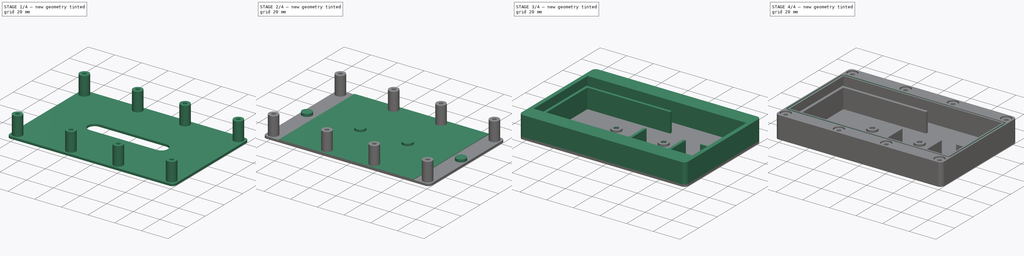
[diagram: build sequence overview — one tinted view per stage of 4, left to right]
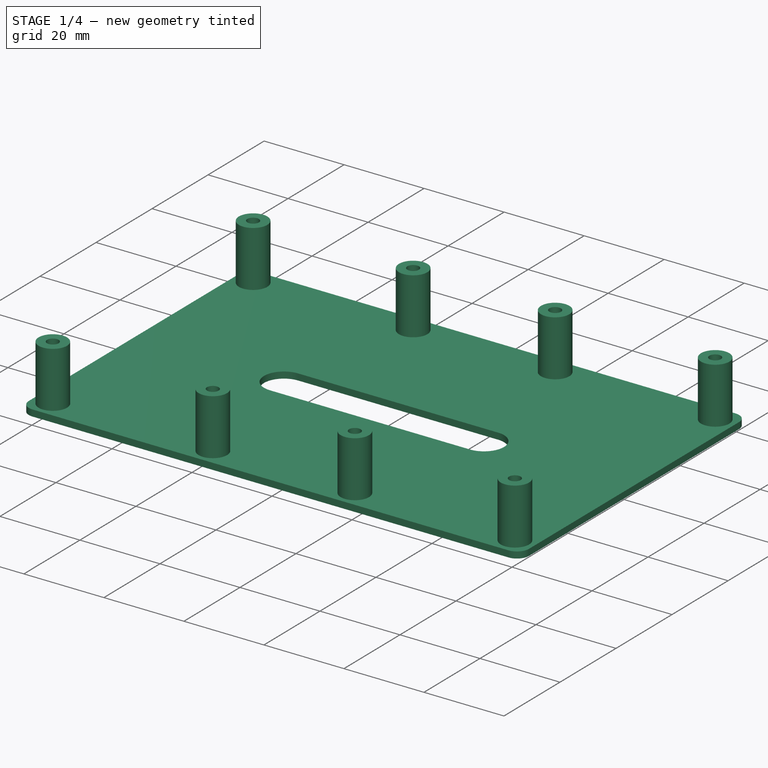
[diagram: stage 1 of 4 — iso view after this stage's code; geometry added in this stage tinted green]
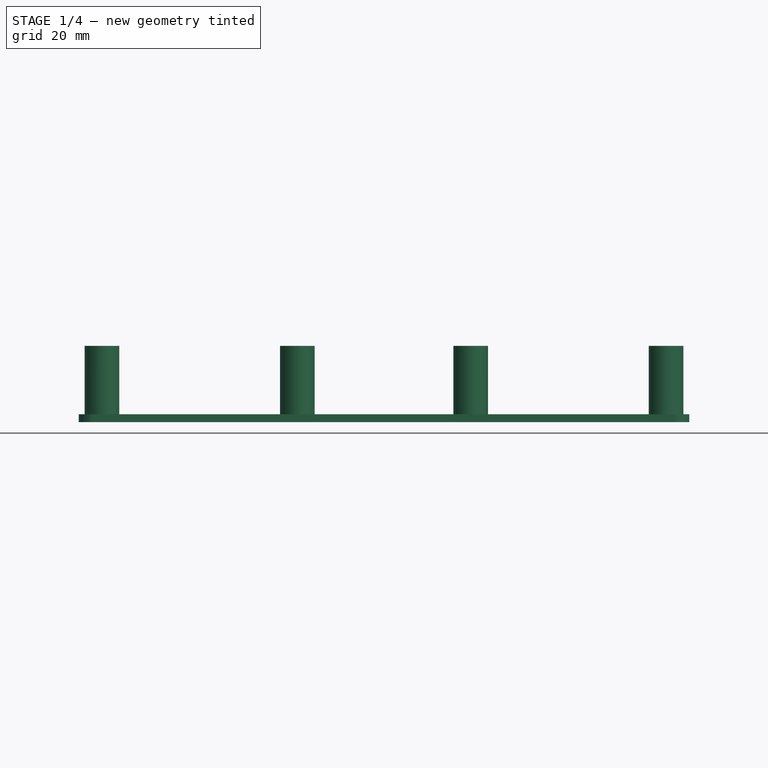
[diagram: stage 1 of 4 — front view after this stage's code; geometry added in this stage tinted green]
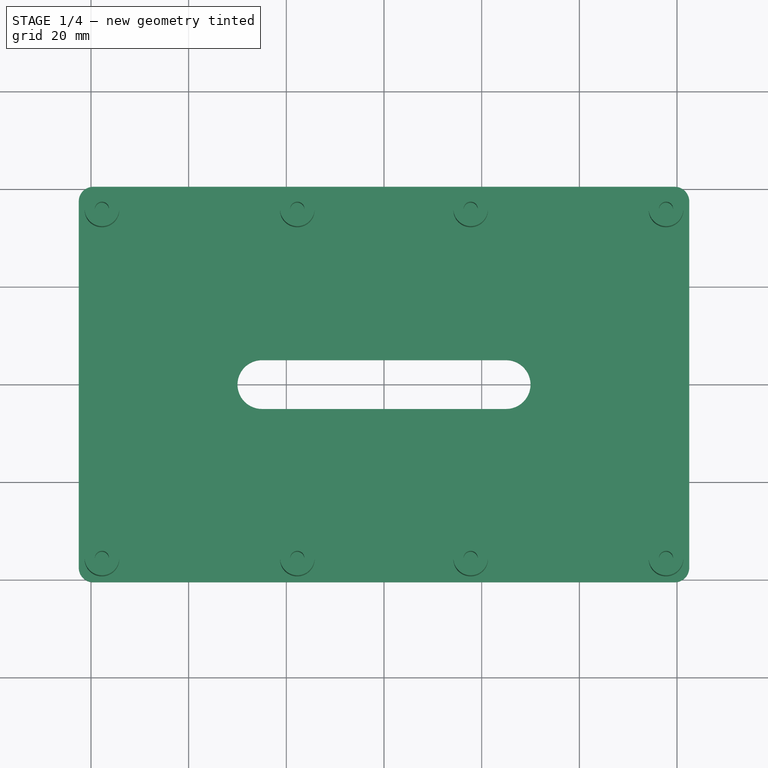
[diagram: stage 1 of 4 — top view after this stage's code; geometry added in this stage tinted green]
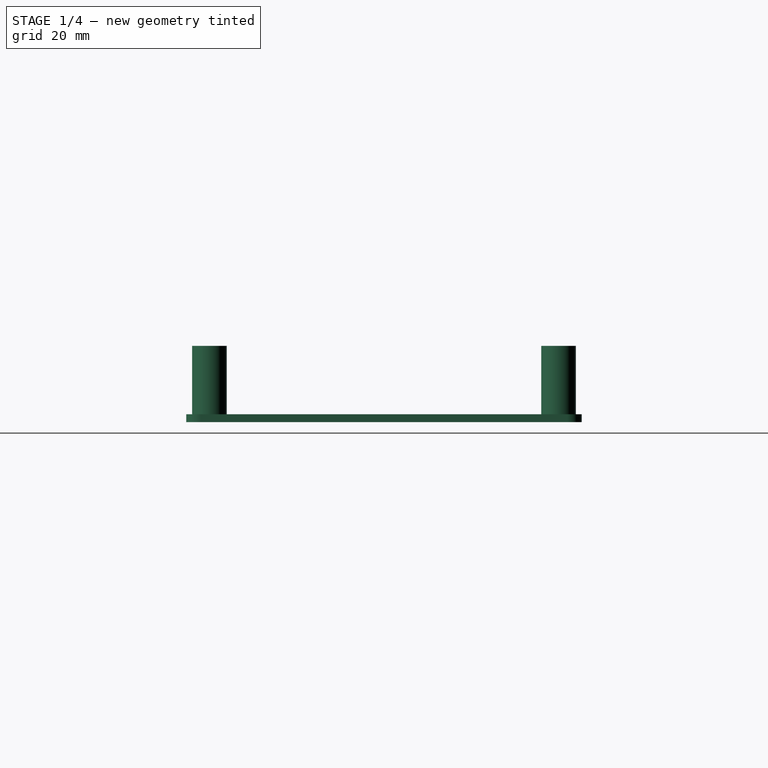
[diagram: stage 1 of 4 — right view after this stage's code; geometry added in this stage tinted green]
FCSTD DOCUMENT  (FreeCAD 0.20R29603 (Git))
Label: RAKTracker
License: All rights reserved
LicenseURL: http://en.wikipedia.org/wiki/All_rights_reserved
objects: Sketcher::SketchObject×12, PartDesign::Pad×8, PartDesign::Pocket×4, PartDesign::Body×4, PartDesign::Plane×2, PartDesign::Hole×2, Spreadsheet::Sheet×1
note: 46 computed .brp shape members not serialized (recipe doc carries the construction recipe); baked Part::Feature solids carry a one-line shape summary decoded from their .brp

FEATURE [PartDesign::Body] Body001  label="Brace"
  Group = -> [Sketch005,Pad003,Sketch006,Pad004,Hole001]
  Origin = -> Origin001
  Placement = pos=(0,36,-32) rot=(0,0,1;0rad)
  Tip = -> Hole001
FEATURE [Sketcher::SketchObject] Sketch007  label="LidBaseSketch"
  FullyConstrained = true
  MapMode = 5
  Support = -> [XY_Plane002]
  expr: Constraints[26] = <<RAKTrackerSheet>>.BoxCornerRadius
  expr: Constraints[5] = <<RAKTrackerSheet>>.BoxHeight
  expr: Constraints[6] = <<RAKTrackerSheet>>.BoxWidth
  sketch-geometry (12):
    g0: LineSegment StartX=-59.5 StartY=40.5 StartZ=0 EndX=59.5 EndY=40.5 EndZ=0
    g1: LineSegment StartX=62.5 StartY=37.5 StartZ=0 EndX=62.5 EndY=-37.5 EndZ=0
    g2: LineSegment StartX=59.5 StartY=-40.5 StartZ=0 EndX=-59.5 EndY=-40.5 EndZ=0
    g3: LineSegment StartX=-62.5 StartY=-37.5 StartZ=0 EndX=-62.5 EndY=37.5 EndZ=0
    g4: ArcOfCircle CenterX=-59.5 CenterY=37.5 CenterZ=0 NormalX=0 NormalY=0 NormalZ=1 AngleXU=0 Radius=3 StartAngle=1.5708 EndAngle=3.14159
    g5: GeomPoint X=-62.5 Y=40.5 Z=0
    g6: ArcOfCircle CenterX=59.5 CenterY=37.5 CenterZ=0 NormalX=0 NormalY=0 NormalZ=1 AngleXU=0 Radius=3 StartAngle=0 EndAngle=1.5708
    g7: GeomPoint X=62.5 Y=40.5 Z=0
    g8: ArcOfCircle CenterX=59.5 CenterY=-37.5 CenterZ=0 NormalX=0 NormalY=0 NormalZ=1 AngleXU=0 Radius=3 StartAngle=4.71239 EndAngle=6.28319
    g9: GeomPoint X=62.5 Y=-40.5 Z=0
    g10: ArcOfCircle CenterX=-59.5 CenterY=-37.5 CenterZ=0 NormalX=0 NormalY=0 NormalZ=1 AngleXU=0 Radius=3 StartAngle=3.14159 EndAngle=4.71239
    g11: GeomPoint X=-62.5 Y=-40.5 Z=0
  constraints (27):
    c: Horizontal(g0)
    c: Horizontal(g2)
    c: Vertical(g1)
    c: Vertical(g3)
    c: Symmetric(g5,g9,g-1)
    c: DistanceX(g5,g7) = 125
    c: DistanceY(g9,g7) = 81
    c: PointOnObject(g5,g0)
    c: PointOnObject(g5,g3)
    c: Tangent(g0,g4) = 1.5708
    c: Tangent(g3,g4) = 1.5708
    c: PointOnObject(g7,g0)
    c: PointOnObject(g7,g1)
    c: Tangent(g0,g6) = 1.5708
    c: Tangent(g1,g6) = 1.5708
    c: PointOnObject(g9,g1)
    c: PointOnObject(g9,g2)
    c: Tangent(g1,g8) = 1.5708
    c: Tangent(g2,g8) = 1.5708
    c: PointOnObject(g11,g3)
    c: PointOnObject(g11,g2)
    c: Tangent(g3,g10) = 1.5708
    c: Tangent(g2,g10) = 1.5708
    c: Equal(g4,g6)
    c: Equal(g4,g8)
    c: Equal(g4,g10)
    c: Radius(g4) = 3
FEATURE [PartDesign::Pad] Pad005  label="LidBase"
  Direction = (0,0,1)
  Length = 1.6
  Length2 = 10
  Profile = -> Sketch007
  ReferenceAxis = -> Sketch007 [N_Axis]
  Type = 0
  expr: Length = <<RAKTrackerSheet>>.BoxBottomThickness
FEATURE [Sketcher::SketchObject] Sketch008  label="LidScrewHoleSketch"
  ExternalGeometry = -> [Sketch007]
  FullyConstrained = true
  MapMode = 5
  Support = -> [XY_Plane002]
  expr: Constraints[10] = <<RAKTrackerSheet>>.StrapDistance
  expr: Constraints[18] = <<RAKTrackerSheet>>.LidHoleDia
  expr: Constraints[19] = <<RAKTrackerSheet>>.StrapDistance
  expr: Constraints[20] = <<RAKTrackerSheet>>.BoxLidHoleSize / 2 + Spreadsheet.WallThicknessNextToLidHole
  expr: Constraints[21] = <<RAKTrackerSheet>>.BoxLidHoleSize / 2 + Spreadsheet.WallThicknessNextToLidHole
  expr: Constraints[22] = <<RAKTrackerSheet>>.BoxLidHoleSize / 2 + Spreadsheet.WallThicknessNextToLidHole
  expr: Constraints[23] = <<RAKTrackerSheet>>.BoxLidHoleSize / 2 + Spreadsheet.WallThicknessNextToLidHole
  sketch-geometry (8):
    g0: Circle CenterX=-57.75 CenterY=35.75 CenterZ=0 NormalX=0 NormalY=0 NormalZ=1 AngleXU=0 Radius=3.55
    g1: Circle CenterX=-17.75 CenterY=35.75 CenterZ=0 NormalX=0 NormalY=0 NormalZ=1 AngleXU=0 Radius=3.55
    g2: Circle CenterX=17.75 CenterY=35.75 CenterZ=0 NormalX=0 NormalY=0 NormalZ=1 AngleXU=0 Radius=3.55
    g3: Circle CenterX=57.75 CenterY=35.75 CenterZ=0 NormalX=0 NormalY=0 NormalZ=1 AngleXU=0 Radius=3.55
    g4: Circle CenterX=57.75 CenterY=-35.75 CenterZ=0 NormalX=0 NormalY=0 NormalZ=1 AngleXU=0 Radius=3.55
    g5: Circle CenterX=17.75 CenterY=-35.75 CenterZ=0 NormalX=0 NormalY=0 NormalZ=1 AngleXU=0 Radius=3.55
    g6: Circle CenterX=-17.75 CenterY=-35.75 CenterZ=0 NormalX=0 NormalY=0 NormalZ=1 AngleXU=0 Radius=3.55
    g7: Circle CenterX=-57.75 CenterY=-35.75 CenterZ=0 NormalX=0 NormalY=0 NormalZ=1 AngleXU=0 Radius=3.55
  constraints (24):
    c: Horizontal(g0,g1)
    c: Horizontal(g1,g2)
    c: Horizontal(g2,g3)
    c: Horizontal(g7,g6)
    c: Horizontal(g6,g4)
    c: Horizontal(g4,g5)
    c: Vertical(g0,g7)
    c: Vertical(g1,g6)
    c: Vertical(g2,g5)
    c: Vertical(g4,g3)
    c: DistanceX(g0,g1) = 40
    c: Equal(g0,g7)
    c: Equal(g0,g1)
    c: Equal(g0,g6)
    c: Equal(g0,g5)
    c: Equal(g0,g2)
    c: Equal(g0,g3)
    c: Equal(g0,g4)
    c: Diameter(g0) = 7.1
    c: DistanceX(g2,g3) = 40
    c: DistanceX(g4,g-9) = 4.75
    c: DistanceY(g-8,g4) = 4.75
    c: DistanceY(g0,g-4) = 4.75
    c: DistanceX(g-5,g0) = 4.75
FEATURE [PartDesign::Pad] Pad006  label="LidScrewHoles"
  BaseFeature = -> Pad005
  Direction = (0,0,1)
  Length = 15.6
  Length2 = 10
  Profile = -> Sketch008
  ReferenceAxis = -> Sketch008 [N_Axis]
  Type = 0
  expr: Length = <<RAKTrackerSheet>>.LidHoleLength + <<RAKTrackerSheet>>.BoxBottomThickness
FEATURE [PartDesign::Plane] DatumPlane001  label="TopOfLid"
  Length = 145.125
  Placement = pos=(0,0,15.6) rot=(0,0,1;0rad)
  ResizeMode = 0
  Width = 101.125
  expr: .Placement.Base.z = <<LidScrewHoles>>.Length
FEATURE [Sketcher::SketchObject] Sketch009
  ExternalGeometry = -> [Sketch008]
  FullyConstrained = true
  MapMode = 5
  Placement = pos=(0,0,15.6) rot=(0,0,1;0rad)
  Support = -> [DatumPlane001]
  expr: Constraints[15] = <<RAKTrackerSheet>>.LidThreadDia
  sketch-geometry (8):
    g0: Circle CenterX=-57.75 CenterY=35.75 CenterZ=0 NormalX=0 NormalY=0 NormalZ=1 AngleXU=0 Radius=1.45
    g1: Circle CenterX=-17.75 CenterY=35.75 CenterZ=0 NormalX=0 NormalY=0 NormalZ=1 AngleXU=0 Radius=1.45
    g2: Circle CenterX=17.75 CenterY=35.75 CenterZ=0 NormalX=0 NormalY=0 NormalZ=1 AngleXU=0 Radius=1.45
    g3: Circle CenterX=57.75 CenterY=35.75 CenterZ=0 NormalX=0 NormalY=0 NormalZ=1 AngleXU=0 Radius=1.45
    g4: Circle CenterX=-57.75 CenterY=-35.75 CenterZ=0 NormalX=0 NormalY=0 NormalZ=1 AngleXU=0 Radius=1.45
    g5: Circle CenterX=-17.75 CenterY=-35.75 CenterZ=0 NormalX=0 NormalY=0 NormalZ=1 AngleXU=0 Radius=1.45
    g6: Circle CenterX=17.75 CenterY=-35.75 CenterZ=0 NormalX=0 NormalY=0 NormalZ=1 AngleXU=0 Radius=1.45
    g7: Circle CenterX=57.75 CenterY=-35.75 CenterZ=0 NormalX=0 NormalY=0 NormalZ=1 AngleXU=0 Radius=1.45
  constraints (10):
    c: Coincident(g0,g-3)
    c: Coincident(g1,g-4)
    c: Coincident(g2,g-5)
    c: Coincident(g3,g-6)
    c: Coincident(g4,g-10)
    c: Coincident(g5,g-9)
    c: Coincident(g6,g-8)
    c: Coincident(g7,g-7)
    c: Equal(g0, g1-g7) x7
    c: Diameter(g0) = 2.9
FEATURE [PartDesign::Pocket] Pocket002  label="LidScrewHoleThread"
  BaseFeature = -> Pad006
  Direction = (0,0,-1)
  Length = 12
  Length2 = 5
  Profile = -> Sketch009
  ReferenceAxis = -> Sketch009 [N_Axis]
  Type = 0
  expr: Length = <<RAKTrackerSheet>>.LidThreadDepth
FEATURE [PartDesign::Body] Body003  label="SolarPanel"
  Group = -> [Sketch010,Pad007]
  Origin = -> Origin003
  Placement = pos=(-7,0,131) rot=(0,0,1;0rad)
  Tip = -> Pad007
FEATURE [Sketcher::SketchObject] Sketch011  label="LidSolarPanelGapSketch"
  ExternalGeometry = -> [Sketch007]
  FullyConstrained = true
  MapMode = 5
  Support = -> [XY_Plane002]
  sketch-geometry (4):
    g0: ArcOfCircle CenterX=-25 CenterY=0 CenterZ=0 NormalX=0 NormalY=0 NormalZ=1 AngleXU=0 Radius=5 StartAngle=1.5708 EndAngle=4.71239
    g1: ArcOfCircle CenterX=25 CenterY=0 CenterZ=0 NormalX=0 NormalY=0 NormalZ=1 AngleXU=0 Radius=5 StartAngle=4.71239 EndAngle=7.85398
    g2: LineSegment StartX=-25 StartY=-5 StartZ=0 EndX=25 EndY=-5 EndZ=0
    g3: LineSegment StartX=25 StartY=5 StartZ=0 EndX=-25 EndY=5 EndZ=0
  constraints (9):
    c: Tangent(g0,g2) = -1.5708
    c: Tangent(g2,g1) = -1.5708
    c: Tangent(g1,g3) = -1.5708
    c: Tangent(g3,g0) = -1.5708
    c: Equal(g0,g1)
    c: PointOnObject(g0,g-1)
    c: DistanceY(g1,g1) = 10
    c: DistanceX(g0,g1) = 50
    c: Symmetric(g1,g0,g-1)
FEATURE [PartDesign::Pocket] Pocket003  label="LidSolarPanelGap"
  BaseFeature = -> Pocket002
  Direction = (0,0,-1)
  Length = 1.6
  Length2 = 5
  Profile = -> Sketch011
  ReferenceAxis = -> Sketch011 [N_Axis]
  Reversed = true
  Type = 0
  expr: Length = <<RAKTrackerSheet>>.BoxBottomThickness
FEATURE [PartDesign::Body] Body002  label="Lid"
  Group = -> [Sketch007,Pad005,Sketch008,Pad006,DatumPlane001,Sketch009,Pocket002,Sketch011,Pocket003]
  Origin = -> Origin002
  Placement = pos=(0,-1.9e-14,76) rot=(0,0,1;0rad)
  Tip = -> Pocket003
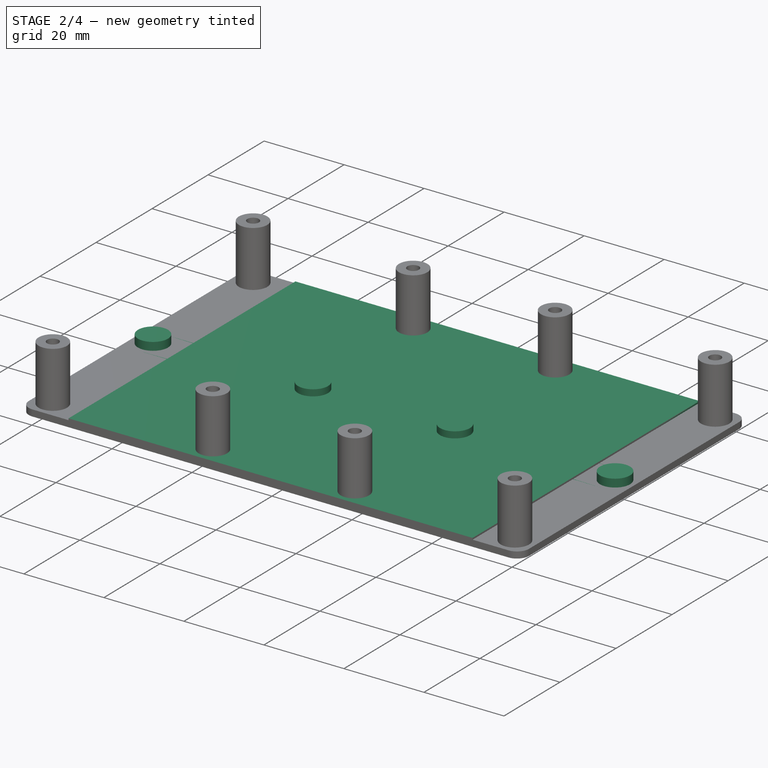
[diagram: stage 2 of 4 — iso view after this stage's code; geometry added in this stage tinted green]
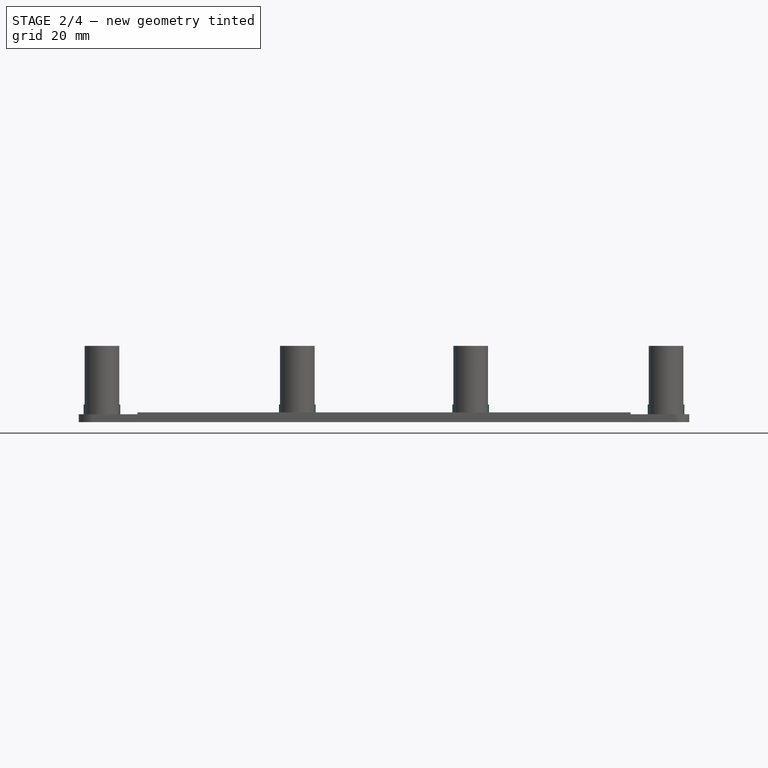
[diagram: stage 2 of 4 — front view after this stage's code; geometry added in this stage tinted green]
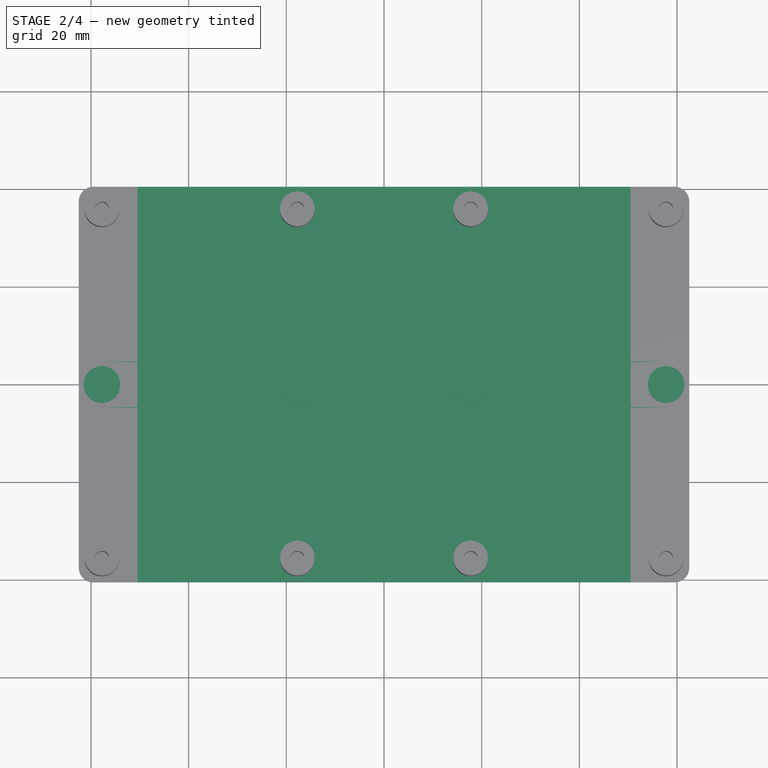
[diagram: stage 2 of 4 — top view after this stage's code; geometry added in this stage tinted green]
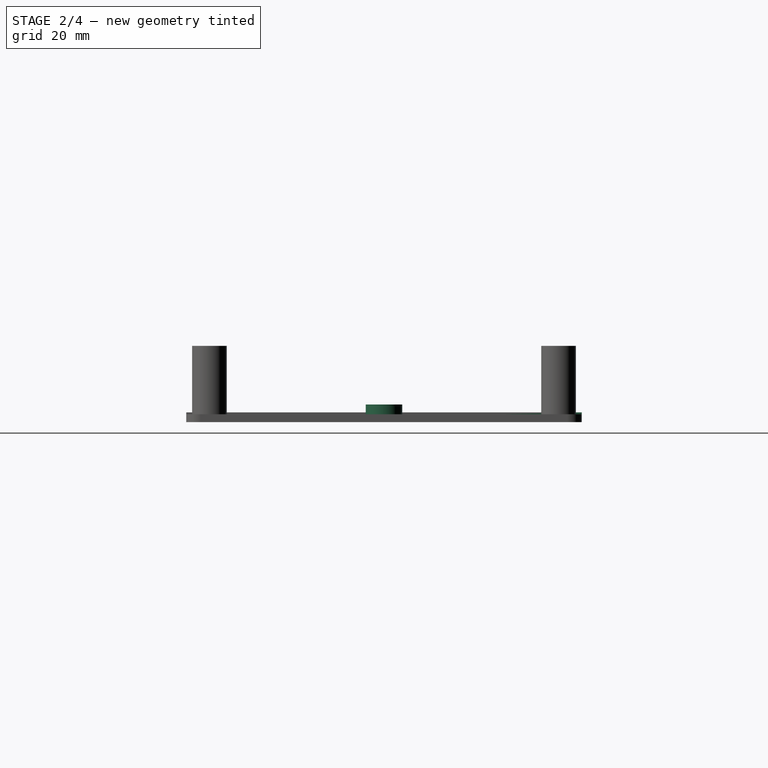
[diagram: stage 2 of 4 — right view after this stage's code; geometry added in this stage tinted green]
FEATURE [PartDesign::Body] Body  label="Box"
  Group = -> [Sketch,Pad,Sketch001,Pad001,Sketch002,Pad002,Sketch003,DatumPlane,Pocket,Hole,Sketch004,Pocket001]
  Origin = -> Origin
  Tip = -> Pocket001
FEATURE [Sketcher::SketchObject] Sketch005  label="BraceBaseSketch"
  FullyConstrained = true
  MapMode = 5
  Support = -> [XY_Plane001]
  expr: Constraints[11] = <<RAKTrackerSheet>>.WallThicknessNextToLidHole * 2 + <<RAKTrackerSheet>>.BoxLidHoleSize
  expr: Constraints[12] = <<RAKTrackerSheet>>.BoxHeight - (<<RAKTrackerSheet>>.WallThicknessNextToLidHole * 2 + <<RAKTrackerSheet>>.BoxLidHoleSize)
  sketch-geometry (4):
    g0: LineSegment StartX=-57.75 StartY=4.75 StartZ=0 EndX=57.75 EndY=4.75 EndZ=0
    g1: LineSegment StartX=57.75 StartY=-4.75 StartZ=0 EndX=-57.75 EndY=-4.75 EndZ=0
    g2: ArcOfCircle CenterX=-57.75 CenterY=4e-16 CenterZ=0 NormalX=0 NormalY=0 NormalZ=1 AngleXU=0 Radius=4.75 StartAngle=1.5708 EndAngle=4.71239
    g3: ArcOfCircle CenterX=57.75 CenterY=4e-16 CenterZ=0 NormalX=0 NormalY=0 NormalZ=1 AngleXU=0 Radius=4.75 StartAngle=4.71239 EndAngle=7.85398
  constraints (13):
    c: Horizontal(g0)
    c: Horizontal(g1)
    c: Coincident(g2,g0)
    c: Coincident(g2,g1)
    c: Coincident(g3,g0)
    c: Coincident(g3,g1)
    c: Symmetric(g0,g1,g-1)
    c: Vertical(g0,g1)
    c: Vertical(g1,g3)
    c: Vertical(g0,g2)
    c: Vertical(g2,g1)
    c: DistanceY(g1,g0) = 9.5
    c: DistanceX(g0,g0) = 115.5
FEATURE [PartDesign::Pad] Pad003  label="BraceBase"
  Direction = (0,0,1)
  Length = 1.6
  Length2 = 10
  Profile = -> Sketch005
  ReferenceAxis = -> Sketch005 [N_Axis]
  Type = 0
  expr: Length = <<RAKTrackerSheet>>.BraceBaseThickness
FEATURE [Sketcher::SketchObject] Sketch006  label="BraceStandoffSketch"
  ExternalGeometry = -> [Sketch005]
  FullyConstrained = true
  MapMode = 5
  Support = -> [XY_Plane001]
  expr: Constraints[2] = <<RAKTrackerSheet>>.StrapDistance
  expr: Constraints[3] = <<RAKTrackerSheet>>.StrapDistance
  expr: Constraints[7] = <<RAKTrackerSheet>>.BoxLidHoleSize
  sketch-geometry (4):
    g0: Circle CenterX=-57.75 CenterY=4e-16 CenterZ=0 NormalX=0 NormalY=0 NormalZ=1 AngleXU=0 Radius=3.75
    g1: Circle CenterX=-17.75 CenterY=4e-16 CenterZ=0 NormalX=0 NormalY=0 NormalZ=1 AngleXU=0 Radius=3.75
    g2: Circle CenterX=17.75 CenterY=4e-16 CenterZ=0 NormalX=0 NormalY=0 NormalZ=1 AngleXU=0 Radius=3.75
    g3: Circle CenterX=57.75 CenterY=4e-16 CenterZ=0 NormalX=0 NormalY=0 NormalZ=1 AngleXU=0 Radius=3.75
  constraints (10):
    c: Horizontal(g0,g1)
    c: Horizontal(g1,g2)
    c: DistanceX(g0,g1) = 40
    c: DistanceX(g2,g3) = 40
    c: Equal(g0,g1)
    c: Equal(g0,g2)
    c: Equal(g0,g3)
    c: Diameter(g0) = 7.5
    c: Coincident(g3,g-4)
    c: Coincident(g0,g-3)
FEATURE [PartDesign::Pad] Pad004  label="BraceStandoff"
  BaseFeature = -> Pad003
  Direction = (0,0,1)
  Length = 3.6
  Length2 = 10
  Profile = -> Sketch006
  ReferenceAxis = -> Sketch006 [N_Axis]
  Type = 0
  expr: Length = <<RAKTrackerSheet>>.BraceBaseThickness + <<RAKTrackerSheet>>.BraceStrapThickness
FEATURE [Sketcher::SketchObject] Sketch010
  FullyConstrained = true
  MapMode = 5
  Support = -> [XY_Plane003]
  expr: Constraints[10] = <<RAKTrackerSheet>>.SolarPanelWidth
  expr: Constraints[9] = <<RAKTrackerSheet>>.SolarPanelHeight
  sketch-geometry (4):
    g0: LineSegment StartX=-50.5 StartY=40.5 StartZ=0 EndX=50.5 EndY=40.5 EndZ=0
    g1: LineSegment StartX=50.5 StartY=40.5 StartZ=0 EndX=50.5 EndY=-40.5 EndZ=0
    g2: LineSegment StartX=50.5 StartY=-40.5 StartZ=0 EndX=-50.5 EndY=-40.5 EndZ=0
    g3: LineSegment StartX=-50.5 StartY=-40.5 StartZ=0 EndX=-50.5 EndY=40.5 EndZ=0
  constraints (11):
    c: Coincident(g0,g1)
    c: Coincident(g1,g2)
    c: Coincident(g2,g3)
    c: Coincident(g3,g0)
    c: Horizontal(g0)
    c: Horizontal(g2)
    c: Vertical(g1)
    c: Vertical(g3)
    c: Symmetric(g0,g1,g-1)
    c: DistanceX(g0,g0) = 101
    c: DistanceY(g1,g1) = 81
FEATURE [PartDesign::Pad] Pad007
  Direction = (0,0,1)
  Length = 2
  Length2 = 10
  Profile = -> Sketch010
  ReferenceAxis = -> Sketch010 [N_Axis]
  Type = 0
  expr: Length = <<RAKTrackerSheet>>.SolarPanelDepth
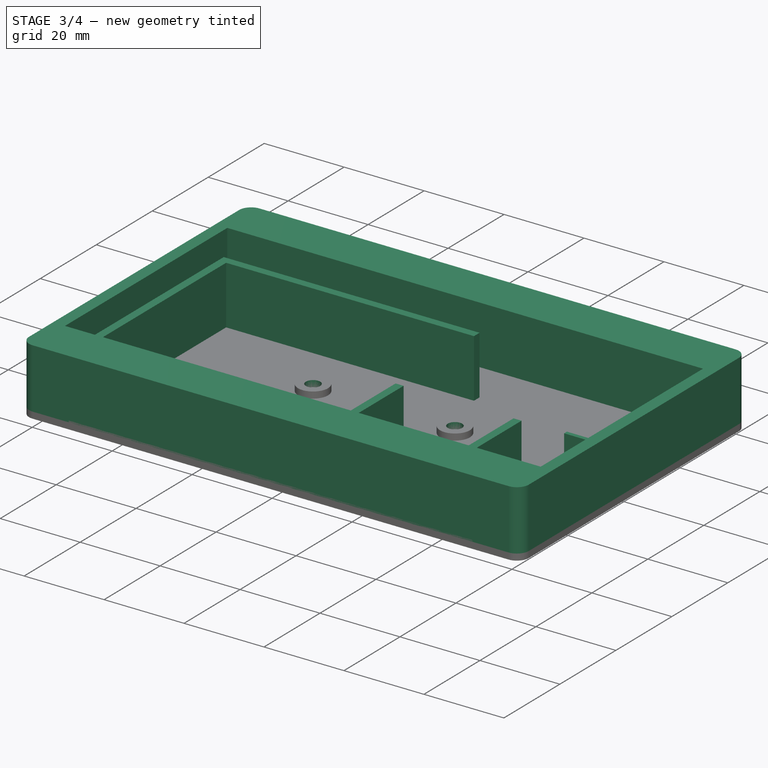
[diagram: stage 3 of 4 — iso view after this stage's code; geometry added in this stage tinted green]
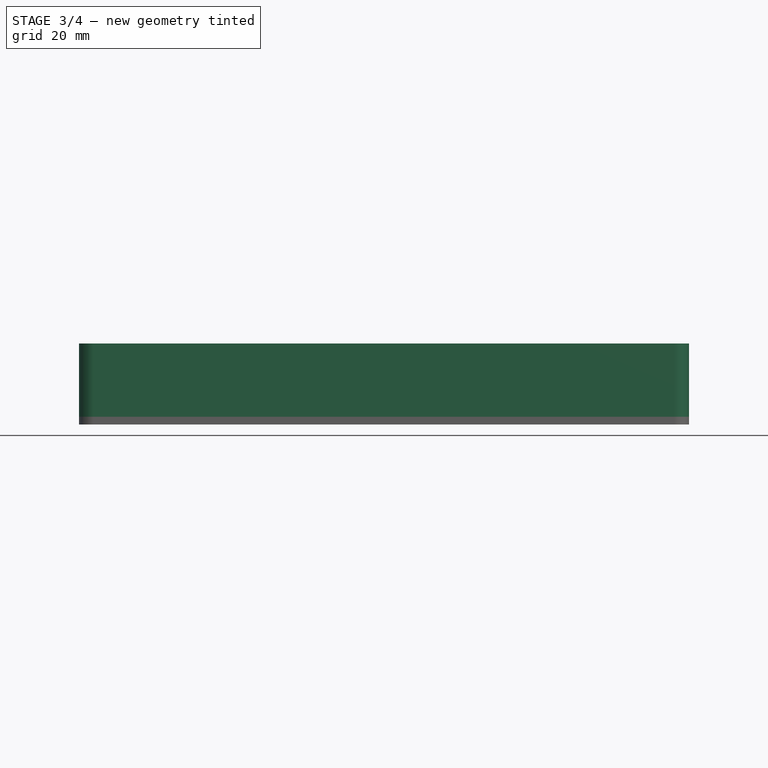
[diagram: stage 3 of 4 — front view after this stage's code; geometry added in this stage tinted green]
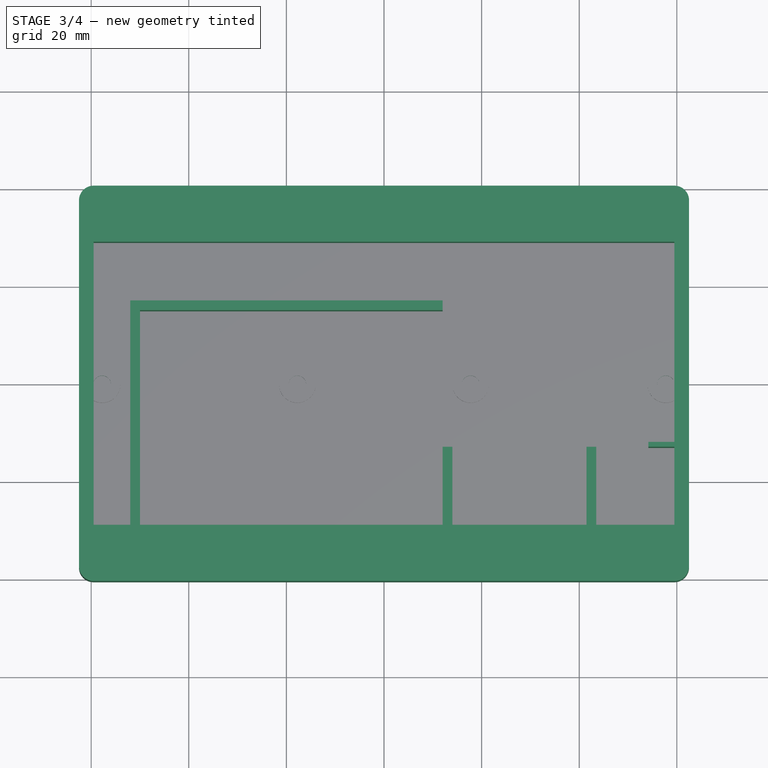
[diagram: stage 3 of 4 — top view after this stage's code; geometry added in this stage tinted green]
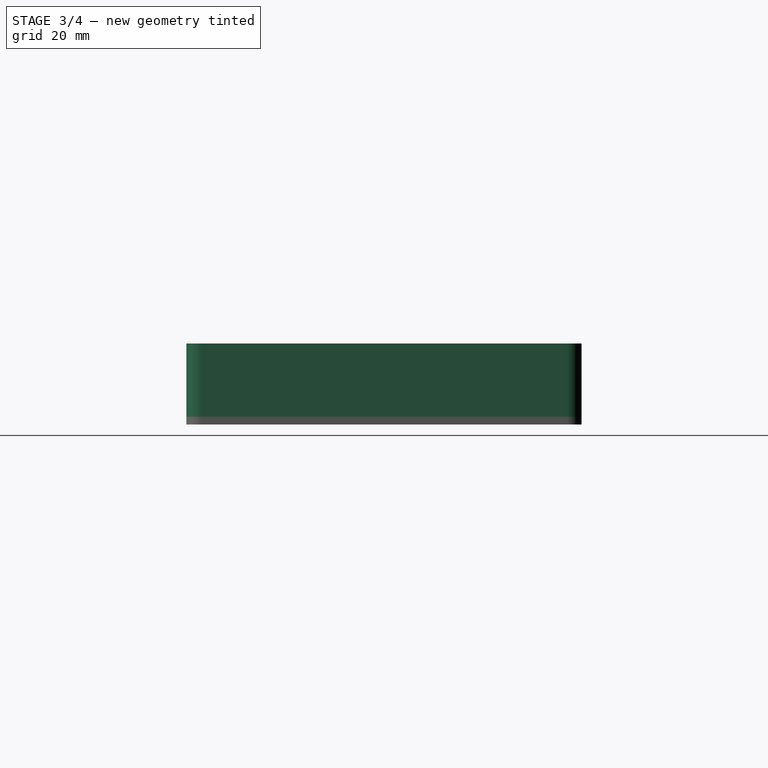
[diagram: stage 3 of 4 — right view after this stage's code; geometry added in this stage tinted green]
FEATURE [Spreadsheet::Sheet] Spreadsheet  label="RAKTrackerSheet"
  cells = A1=Box Height; B1(BoxHeight)==125mm; D1=Internal wall thickness; E1(WallThickness)==2mm; I1=TODO; A2=Box Width; B2(BoxWidth)==81mm; A3=Box Depth; B3(BoxDepth)==15mm + B6; D3=Wall Thickness next to Lid Hole; E3(WallThicknessNextToLidHole)==1mm; A4=Outer wall thickness (long); B4(BoxOuterwallLongThickness)==E3 + B5 + B23; D4=StrapDistance; E4(StrapDistance)==40mm; I4=Lid needs a hole for solar panel wire; A5=Outer wall thickness (short); B5(BoxOuterwallShortThickness)==3mm; D5=StrapThickness; E5(StrapThickness)==2mm; I5=Think about part external GPS. If we can make it one little external thing, then it would probably make the whole thing better; A6=Box Bottom Height; B6(BoxBottomThickness)==1.6mm; A7=Box Corner Radius; B7(BoxCornerRadius)==3mm; D8=ScrewHoleSize; E8(ScrewHoleSize)==3mm; D9=ScrewTapSize; E9(ScrewTapSize)==2.7mm; A10=PCBWidth; B10(PCBHeight)==31mm; A11=PCBHeight; B11==36mm; D11=GPSWidth and Height; E11(GPSWidthAndHeight)==16mm; A12=PCBDepth; B12(PCBDepth)==14mm; D12=GPSDepth (with tape); E12(GPSDepth)==8mm; A13=PCBHole; B13(PCBHole)==3mm; A14=PCBHoleDistance; B14(PCBHoleDistance)==22mm; D14=SealWidth; E14(SealWidth)==1mm; A15=PCBHoleFromEdge; B15(PCBHoleFromEdge)==5mm; D15=SealDepth; E15(SealDepth)==0.6mm; A16=PCBDepthToHole; B16(PCBDepthToHole)==4.5mm; A17=PCBHoleStandDia; B17(PCBHoleStandDia)==5mm; D17=Lora Antenna Width; E17(LoraAntWidth)==7.5mm; D18=Lora Antenna Length; E18==60mm; A20=PCB Mount Holesize; B20(PCBMountHoleDia)==3.9mm; D20=BatteryWidth; E20(BatteryWidth)==44mm; A21=PCH Mount Diameter; B21(PCBMountDia)==7.1mm; D21=BatteryHeight; E21(BatteryHeight)==62mm; D22=BatteryDepth; E22==7mm; A23=Box Lid Hole dia; B23(BoxLidHoleSize)==7.5mm; A24=Box Lid Hole Depth; B24(BoxLidHoleDepth)==15mm; D24=SolarPanelHeight; E24(SolarPanelHeight)==101mm; A25=Box Lid Through Hole Dia; B25(BoxLidThrougHoleDia)==3.5mm; D25=SolarPanelWidth; E25(SolarPanelWidth)==81mm; D26=SolarPanelDepth; E26(SolarPanelDepth)==2mm; A27=Brace Base Thickness; B27(BraceBaseThickness)==1.6mm; A28=Brace Strap Thickness; B28(BraceStrapThickness)==E5; A30=Lid Hole Diameter; B30(LidHoleDia)==7.1mm; A31=Lid Thread Diameter; B31(LidThreadDia)==2.9mm; A32=Lid Thread Depth; B32(LidThreadDepth)==B24 - 3mm; A33=Lid Hole Length; B33(LidHoleLength)==B24 - B34; A34=Lid Offset Washer; B34==1mm
FEATURE [Sketcher::SketchObject] Sketch  label="BaseSketch"
  FullyConstrained = true
  MapMode = 5
  Support = -> [XY_Plane]
  expr: Constraints[23] = <<RAKTrackerSheet>>.BoxCornerRadius
  expr: Constraints[5] = <<RAKTrackerSheet>>.BoxHeight
  expr: Constraints[6] = <<RAKTrackerSheet>>.BoxWidth
  sketch-geometry (12):
    g0: LineSegment StartX=-59.5 StartY=40.5 StartZ=0 EndX=59.5 EndY=40.5 EndZ=0
    g1: LineSegment StartX=62.5 StartY=37.5 StartZ=0 EndX=62.5 EndY=-37.5 EndZ=0
    g2: LineSegment StartX=59.5 StartY=-40.5 StartZ=0 EndX=-59.5 EndY=-40.5 EndZ=0
    g3: LineSegment StartX=-62.5 StartY=-37.5 StartZ=0 EndX=-62.5 EndY=37.5 EndZ=0
    g4: ArcOfCircle CenterX=-59.5 CenterY=37.5 CenterZ=0 NormalX=0 NormalY=0 NormalZ=1 AngleXU=0 Radius=3 StartAngle=1.5708 EndAngle=3.14159
    g5: GeomPoint X=-62.5 Y=40.5 Z=0
    g6: ArcOfCircle CenterX=59.5 CenterY=37.5 CenterZ=0 NormalX=0 NormalY=0 NormalZ=1 AngleXU=0 Radius=3 StartAngle=-9e-16 EndAngle=1.5708
    g7: GeomPoint X=62.5 Y=40.5 Z=0
    g8: ArcOfCircle CenterX=59.5 CenterY=-37.5 CenterZ=0 NormalX=0 NormalY=0 NormalZ=1 AngleXU=0 Radius=3 StartAngle=4.71239 EndAngle=6.28319
    g9: GeomPoint X=62.5 Y=-40.5 Z=0
    g10: ArcOfCircle CenterX=-59.5 CenterY=-37.5 CenterZ=0 NormalX=0 NormalY=0 NormalZ=1 AngleXU=0 Radius=3 StartAngle=3.14159 EndAngle=4.71239
    g11: GeomPoint X=-62.5 Y=-40.5 Z=0
  constraints (27):
    c: Horizontal(g0)
    c: Horizontal(g2)
    c: Vertical(g1)
    c: Vertical(g3)
    c: Symmetric(g11,g7,g-1)
    c: DistanceX(g5,g7) = 125
    c: DistanceY(g9,g7) = 81
    c: PointOnObject(g5,g3)
    c: PointOnObject(g5,g0)
    c: Tangent(g3,g4) = 1.5708
    c: Tangent(g0,g4) = 1.5708
    c: PointOnObject(g7,g0)
    c: PointOnObject(g7,g1)
    c: Tangent(g0,g6) = 1.5708
    c: Tangent(g1,g6) = 1.5708
    c: PointOnObject(g9,g1)
    c: PointOnObject(g9,g2)
    c: Tangent(g1,g8) = 1.5708
    c: Tangent(g2,g8) = 1.5708
    c: PointOnObject(g11,g3)
    c: PointOnObject(g11,g2)
    c: Tangent(g3,g10) = 1.5708
    c: Tangent(g2,g10) = 1.5708
    c: Radius(g4) = 3
    c: Equal(g4,g6)
    c: Equal(g6,g8)
    c: Equal(g8,g10)
FEATURE [PartDesign::Pad] Pad  label="Base"
  Direction = (0,0,1)
  Length = 1.6
  Length2 = 10
  Profile = -> Sketch
  ReferenceAxis = -> Sketch [N_Axis]
  Type = 0
  expr: Length = <<RAKTrackerSheet>>.BoxBottomThickness
FEATURE [Sketcher::SketchObject] Sketch001  label="WallSketch"
  ExternalGeometry = -> [Sketch]
  FullyConstrained = true
  MapMode = 5
  Support = -> [XY_Plane]
  expr: Constraints[18] = <<RAKTrackerSheet>>.WallThickness / 2
  expr: Constraints[19] = <<RAKTrackerSheet>>.GPSWidthAndHeight / 3
  expr: Constraints[33] = <<RAKTrackerSheet>>.LoraAntWidth
  expr: Constraints[38] = <<RAKTrackerSheet>>.WallThickness
  expr: Constraints[3] = <<RAKTrackerSheet>>.WallThickness
  expr: Constraints[45] = <<RAKTrackerSheet>>.BatteryWidth
  expr: Constraints[46] = <<RAKTrackerSheet>>.WallThickness
  expr: Constraints[57] = <<RAKTrackerSheet>>.GPSWidthAndHeight
  expr: Constraints[59] = <<RAKTrackerSheet>>.BatteryHeight
  expr: Constraints[5] = Spreadsheet.GPSWidthAndHeight
  expr: Constraints[77] = <<RAKTrackerSheet>>.BoxOuterwallLongThickness
  expr: Constraints[78] = <<RAKTrackerSheet>>.BoxOuterwallShortThickness
  sketch-geometry (30):
    g0: LineSegment StartX=41.5 StartY=-13 StartZ=0 EndX=41.5 EndY=-29 EndZ=0
    g1: LineSegment StartX=43.5 StartY=-13 StartZ=0 EndX=41.5 EndY=-13 EndZ=0
    g2: LineSegment StartX=59.5 StartY=-29 StartZ=0 EndX=43.5 EndY=-29 EndZ=0
    g3: LineSegment StartX=43.5 StartY=-29 StartZ=0 EndX=43.5 EndY=-13 EndZ=0
    g4: LineSegment StartX=59.5 StartY=-29 StartZ=0 EndX=59.5 EndY=-13 EndZ=0
    g5: LineSegment StartX=59.5 StartY=-13 StartZ=0 EndX=54.1667 EndY=-13 EndZ=0
    g6: LineSegment StartX=54.1667 StartY=-13 StartZ=0 EndX=54.1667 EndY=-12 EndZ=0
    g7: LineSegment StartX=54.1667 StartY=-12 StartZ=0 EndX=59.5 EndY=-12 EndZ=0
    g8: LineSegment StartX=59.5 StartY=-12 StartZ=0 EndX=59.5 EndY=29 EndZ=0
    g9: LineSegment StartX=-50 StartY=-29 StartZ=0 EndX=12 EndY=-29 EndZ=0
    g10: LineSegment StartX=12 StartY=-29 StartZ=0 EndX=12 EndY=-13 EndZ=0
    g11: LineSegment StartX=12 StartY=-13 StartZ=0 EndX=14 EndY=-13 EndZ=0
    g12: LineSegment StartX=14 StartY=-13 StartZ=0 EndX=14 EndY=-29 EndZ=0
    g13: LineSegment StartX=14 StartY=-29 StartZ=0 EndX=41.5 EndY=-29 EndZ=0
    g14: LineSegment StartX=-50 StartY=-29 StartZ=0 EndX=-50 EndY=15 EndZ=0
    g15: LineSegment StartX=-52 StartY=17 StartZ=0 EndX=-52 EndY=-29 EndZ=0
    g16: LineSegment StartX=-52 StartY=-29 StartZ=0 EndX=-59.5 EndY=-29 EndZ=0
    g17: LineSegment StartX=-52 StartY=17 StartZ=0 EndX=12 EndY=17 EndZ=0
    g18: LineSegment StartX=12 StartY=17 StartZ=0 EndX=12 EndY=15 EndZ=0
    g19: LineSegment StartX=-59.5 StartY=29 StartZ=0 EndX=-59.5 EndY=-29 EndZ=0
    g20: LineSegment StartX=-50 StartY=15 StartZ=0 EndX=12 EndY=15 EndZ=0
    g21: LineSegment StartX=-59.5 StartY=29 StartZ=0 EndX=59.5 EndY=29 EndZ=0
    g22: LineSegment StartX=-59.5 StartY=40.5 StartZ=0 EndX=59.5 EndY=40.5 EndZ=0
    g23: LineSegment StartX=62.5 StartY=37.5 StartZ=0 EndX=62.5 EndY=-37.5 EndZ=0
    g24: LineSegment StartX=59.5 StartY=-40.5 StartZ=0 EndX=-59.5 EndY=-40.5 EndZ=0
    g25: LineSegment StartX=-62.5 StartY=-37.5 StartZ=0 EndX=-62.5 EndY=37.5 EndZ=0
    g26: ArcOfCircle CenterX=-59.5 CenterY=37.5 CenterZ=0 NormalX=0 NormalY=0 NormalZ=1 AngleXU=0 Radius=3 StartAngle=1.5708 EndAngle=3.14159
    g27: ArcOfCircle CenterX=59.5 CenterY=-37.5 CenterZ=0 NormalX=0 NormalY=0 NormalZ=1 AngleXU=0 Radius=3 StartAngle=4.71239 EndAngle=6.28319
    g28: ArcOfCircle CenterX=-59.5 CenterY=-37.5 CenterZ=0 NormalX=0 NormalY=0 NormalZ=1 AngleXU=0 Radius=3 StartAngle=3.14159 EndAngle=4.71239
    g29: ArcOfCircle CenterX=59.5 CenterY=37.5 CenterZ=0 NormalX=0 NormalY=0 NormalZ=1 AngleXU=0 Radius=3 StartAngle=-8.7e-14 EndAngle=1.5708
  constraints (79):
    c: Horizontal(g2)
    c: Vertical(g0)
    c: Vertical(g3)
    c: DistanceX(g1,g1) = 2
    c: Symmetric(g19,g2,g-1)
    c: DistanceX(g2,g2) = 16
    c: Coincident(g4,g2)
    c: Vertical(g4)
    c: Coincident(g5,g4)
    c: Horizontal(g5)
    c: Coincident(g7,g6)
    c: Horizontal(g7)
    c: Coincident(g8,g7)
    c: Vertical(g8)
    c: Vertical(g7,g4)
    c: Vertical(g6,g5)
    c: Coincident(g6,g5)
    c: Equal(g4,g3)
    c: DistanceY(g6,g6) = 1
    c: DistanceX(g5,g5) = 5.33333
    c: Horizontal(g9)
    c: Coincident(g10,g9)
    c: Vertical(g10)
    c: Coincident(g11,g10)
    c: Coincident(g12,g11)
    c: Vertical(g12)
    c: Equal(g11,g1)
    c: Coincident(g14,g9)
    c: Vertical(g14)
    c: Vertical(g15)
    c: Coincident(g16,g15)
    c: Horizontal(g16)
    c: Horizontal(g15,g9)
    c: DistanceX(g16,g16) = 7.5
    c: Coincident(g17,g18)
    c: Horizontal(g17)
    c: Vertical(g18)
    c: Coincident(g19,g16)
    c: DistanceY(g18,g18) = 2
    c: Vertical(g19)
    c: Vertical(g18,g10)
    c: Coincident(g15,g17)
    c: Coincident(g20,g14)
    c: Coincident(g20,g18)
    c: Horizontal(g20)
    c: DistanceY(g9,g18) = 44
    c: DistanceX(g15,g9) = 2
    c: Coincident(g0,g13)
    c: Coincident(g13,g12)
    c: Horizontal(g2,g0)
    c: Horizontal(g0,g12)
    c: Horizontal(g12,g9)
    c: Horizontal(g11)
    c: Coincident(g0,g1)
    c: Coincident(g3,g1)
    c: Coincident(g2,g3)
    c: Horizontal(g1)
    c: DistanceY(g2,g1) = 16
    c: Horizontal(g0,g11)
    c: DistanceX(g9,g9) = 62
    c: Coincident(g21,g19)
    c: Coincident(g21,g8)
    c: Horizontal(g21)
    c: Tangent(g22,g26) = 1.5708
    c: Tangent(g25,g26) = 1.5708
    c: Tangent(g23,g27) = 1.5708
    c: Tangent(g24,g27) = 1.5708
    c: Tangent(g24,g28) = 1.5708
    c: Tangent(g25,g28) = 1.5708
    c: Coincident(g25,g-3)
    c: Coincident(g24,g-6)
    c: Coincident(g23,g-5)
    c: Coincident(g24,g-6)
    c: Tangent(g22,g29) = 1.5708
    c: Tangent(g23,g29) = 1.5708
    c: Coincident(g22,g-4)
    c: Coincident(g22,g-4)
    c: DistanceY(g19,g22) = 11.5
    c: DistanceX(g25,g19) = 3
FEATURE [PartDesign::Pad] Pad001  label="Walls"
  BaseFeature = -> Pad
  Direction = (0,0,1)
  Length = 16.6
  Length2 = 10
  Profile = -> Sketch001
  ReferenceAxis = -> Sketch001 [N_Axis]
  Type = 0
  expr: Length = <<RAKTrackerSheet>>.BoxDepth
FEATURE [PartDesign::Hole] Hole001  label="BraceScrewHoles"
  BaseFeature = -> Pad004
  CustomThreadClearance = 0
  Depth = 25
  DepthType = 0
  Diameter = 3.6
  DrillForDepth = false
  DrillPoint = 1
  DrillPointAngle = 118
  HoleCutCountersinkAngle = 90
  HoleCutCustomValues = false
  HoleCutDepth = 0
  HoleCutDiameter = 6.7
  HoleCutType = 2
  ModelThread = false
  Profile = -> Sketch006
  Reversed = true
  Tapered = false
  TaperedAngle = 90
  ThreadClass = 0
  ThreadDepth = 25
  ThreadDepthType = 0
  ThreadDirection = 0
  ThreadFit = 2
  ThreadSize = 9
  ThreadType = 1
  Threaded = false
  UseCustomThreadClearance = false
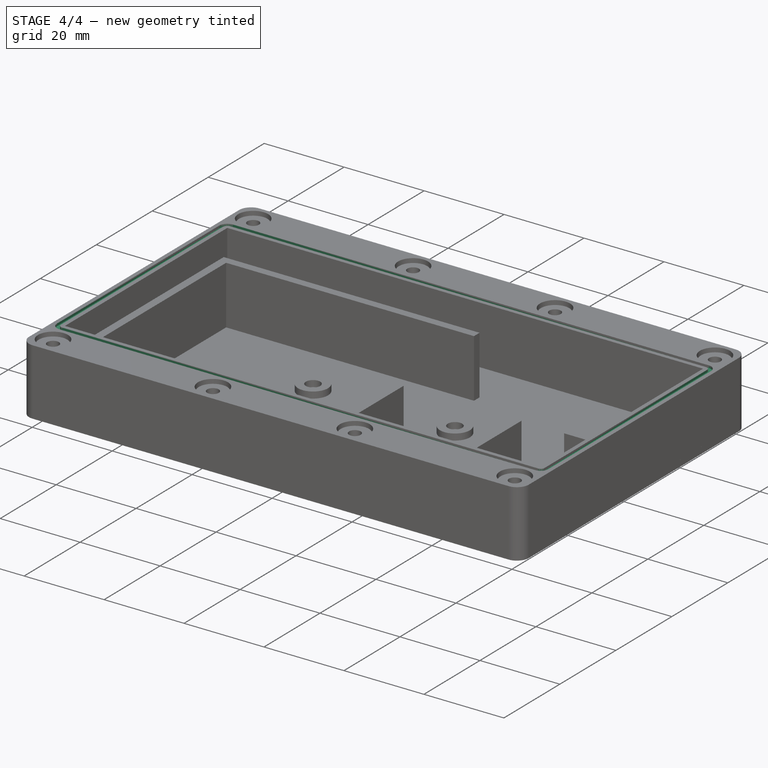
[diagram: stage 4 of 4 — iso view after this stage's code; geometry added in this stage tinted green]
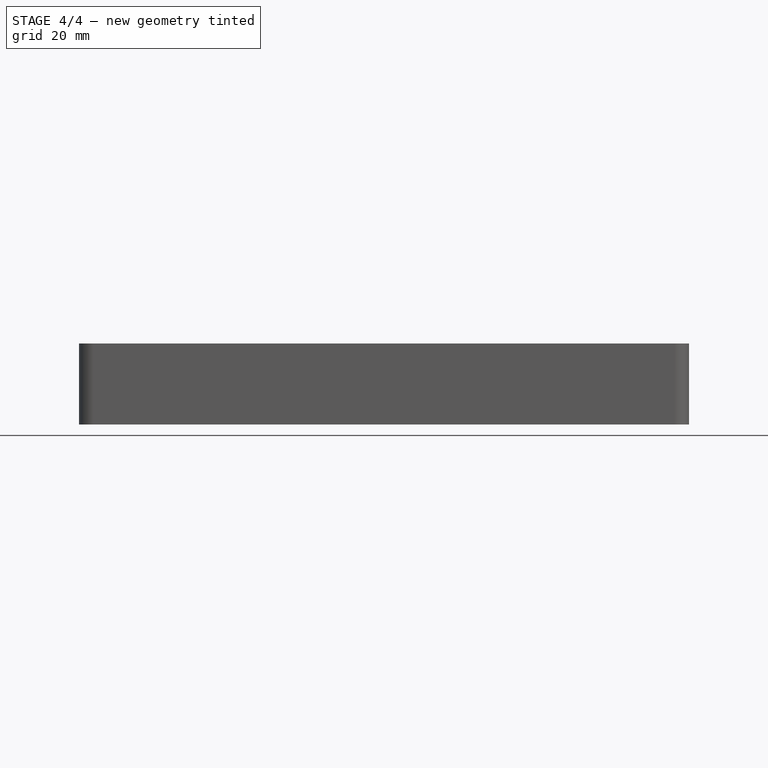
[diagram: stage 4 of 4 — front view after this stage's code; geometry added in this stage tinted green]
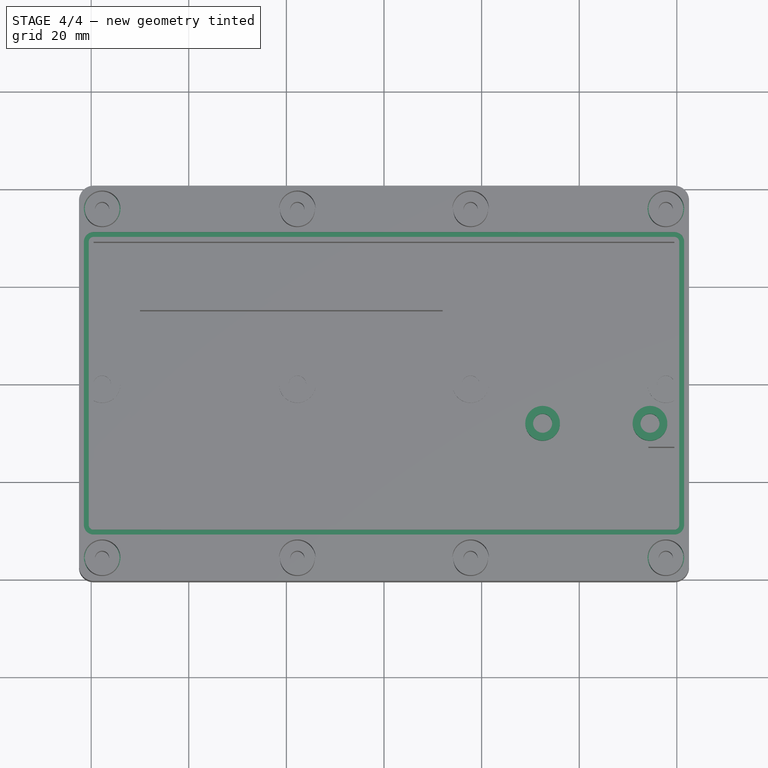
[diagram: stage 4 of 4 — top view after this stage's code; geometry added in this stage tinted green]
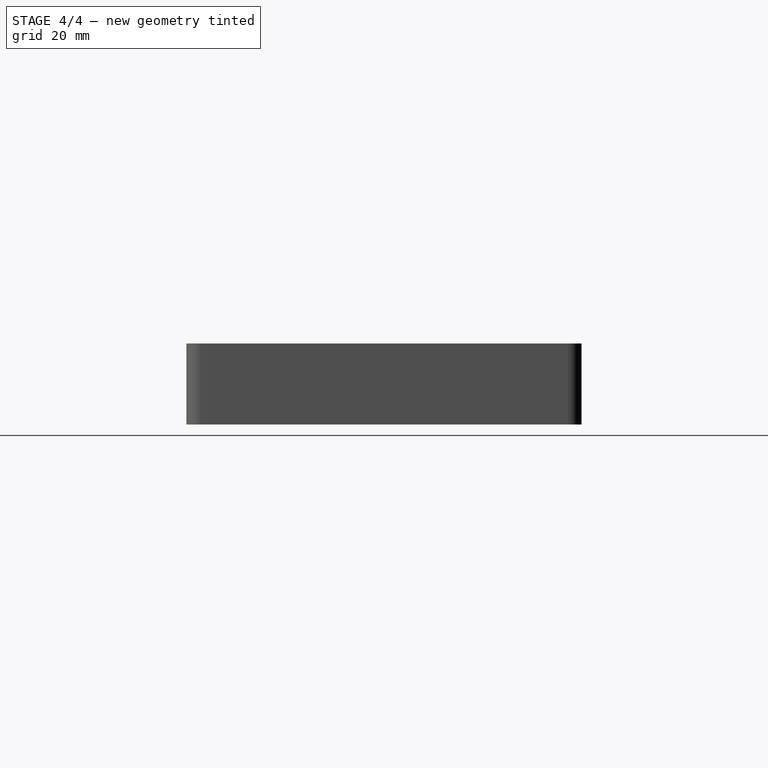
[diagram: stage 4 of 4 — right view after this stage's code; geometry added in this stage tinted green]
FEATURE [Sketcher::SketchObject] Sketch002  label="PCHMountSketch"
  ExternalGeometry = -> [Sketch001]
  FullyConstrained = true
  MapMode = 5
  Support = -> [XY_Plane]
  expr: Constraints[16] = <<RAKTrackerSheet>>.PCBHoleFromEdge
  expr: Constraints[1] = <<RAKTrackerSheet>>.PCBHoleDistance
  expr: Constraints[6] = <<RAKTrackerSheet>>.PCBMountDia
  expr: Constraints[7] = <<RAKTrackerSheet>>.PCBMountHoleDia
  sketch-geometry (8):
    g0: Circle CenterX=32.5 CenterY=-8 CenterZ=0 NormalX=0 NormalY=0 NormalZ=1 AngleXU=0 Radius=3.55
    g1: Circle CenterX=54.5 CenterY=-8 CenterZ=0 NormalX=0 NormalY=0 NormalZ=1 AngleXU=0 Radius=3.55
    g2: Circle CenterX=32.5 CenterY=-8 CenterZ=0 NormalX=0 NormalY=0 NormalZ=1 AngleXU=0 Radius=1.95
    g3: Circle CenterX=54.5 CenterY=-8 CenterZ=0 NormalX=0 NormalY=0 NormalZ=1 AngleXU=0 Radius=1.95
    g4: LineSegment StartX=54.5 StartY=-8 StartZ=0 EndX=59.5 EndY=-8 EndZ=0
    g5: LineSegment StartX=59.5 StartY=-8 StartZ=0 EndX=59.5 EndY=-13 EndZ=0
    g6: LineSegment StartX=59.5 StartY=-13 StartZ=0 EndX=54.5 EndY=-13 EndZ=0
    g7: LineSegment StartX=54.5 StartY=-13 StartZ=0 EndX=54.5 EndY=-8 EndZ=0
  constraints (20):
    c: Horizontal(g1,g0)
    c: DistanceX(g0,g1) = 22
    c: Equal(g1,g0)
    c: Coincident(g2,g0)
    c: Coincident(g3,g1)
    c: Equal(g3,g2)
    c: Diameter(g0) = 7.1
    c: Diameter(g2) = 3.9
    c: Coincident(g4,g5)
    c: Coincident(g5,g6)
    c: Coincident(g6,g7)
    c: Coincident(g7,g4)
    c: Horizontal(g4)
    c: Horizontal(g6)
    c: Vertical(g5)
    c: Vertical(g7)
    c: DistanceY(g5,g5) = 5
    c: Equal(g5,g4)
    c: Coincident(g4,g1)
    c: Coincident(g5,g-3)
FEATURE [PartDesign::Pad] Pad002  label="PCBMount"
  BaseFeature = -> Pad001
  Direction = (0,0,1)
  Length = 6.1
  Length2 = 10
  Profile = -> Sketch002
  ReferenceAxis = -> Sketch002 [N_Axis]
  Type = 0
  expr: Length = <<RAKTrackerSheet>>.BoxBottomThickness + <<RAKTrackerSheet>>.PCBDepthToHole
FEATURE [PartDesign::Plane] DatumPlane  label="TopOfBox"
  Length = 145.125
  MapMode = 2
  Placement = pos=(0,0,16.6) rot=(0,0,1;0rad)
  ResizeMode = 0
  Width = 101.125
  expr: .Placement.Base.z = <<Walls>>.Length
FEATURE [Sketcher::SketchObject] Sketch003  label="LidHoleSketch"
  ExternalGeometry = -> [Sketch]
  FullyConstrained = true
  MapMode = 5
  Placement = pos=(0,0,16.6) rot=(0,0,1;0rad)
  Support = -> [DatumPlane]
  expr: Constraints[10] = <<RAKTrackerSheet>>.StrapDistance
  expr: Constraints[11] = <<RAKTrackerSheet>>.StrapDistance
  expr: Constraints[19] = <<RAKTrackerSheet>>.BoxLidHoleSize
  expr: Constraints[20] = <<RAKTrackerSheet>>.BoxLidHoleSize / 2 + Spreadsheet.WallThicknessNextToLidHole
  expr: Constraints[21] = <<RAKTrackerSheet>>.BoxLidHoleSize / 2 + Spreadsheet.WallThicknessNextToLidHole
  expr: Constraints[22] = <<RAKTrackerSheet>>.BoxLidHoleSize / 2 + Spreadsheet.WallThicknessNextToLidHole
  expr: Constraints[23] = <<RAKTrackerSheet>>.BoxLidHoleSize / 2 + Spreadsheet.WallThicknessNextToLidHole
  sketch-geometry (8):
    g0: Circle CenterX=17.75 CenterY=-35.75 CenterZ=0 NormalX=0 NormalY=0 NormalZ=1 AngleXU=0 Radius=3.75
    g1: Circle CenterX=57.75 CenterY=-35.75 CenterZ=0 NormalX=0 NormalY=0 NormalZ=1 AngleXU=0 Radius=3.75
    g2: Circle CenterX=-57.75 CenterY=-35.75 CenterZ=0 NormalX=0 NormalY=0 NormalZ=1 AngleXU=0 Radius=3.75
    g3: Circle CenterX=-17.75 CenterY=-35.75 CenterZ=0 NormalX=0 NormalY=0 NormalZ=1 AngleXU=0 Radius=3.75
    g4: Circle CenterX=17.75 CenterY=35.75 CenterZ=0 NormalX=0 NormalY=0 NormalZ=1 AngleXU=0 Radius=3.75
    g5: Circle CenterX=57.75 CenterY=35.75 CenterZ=0 NormalX=0 NormalY=0 NormalZ=1 AngleXU=0 Radius=3.75
    g6: Circle CenterX=-57.75 CenterY=35.75 CenterZ=0 NormalX=0 NormalY=0 NormalZ=1 AngleXU=0 Radius=3.75
    g7: Circle CenterX=-17.75 CenterY=35.75 CenterZ=0 NormalX=0 NormalY=0 NormalZ=1 AngleXU=0 Radius=3.75
  constraints (24):
    c: Horizontal(g0,g1)
    c: Horizontal(g1,g2)
    c: Horizontal(g2,g3)
    c: Horizontal(g4,g5)
    c: Horizontal(g5,g6)
    c: Horizontal(g6,g7)
    c: Vertical(g0,g4)
    c: Vertical(g1,g5)
    c: Vertical(g2,g6)
    c: Vertical(g3,g7)
    c: DistanceX(g0,g1) = 40
    c: DistanceX(g2,g3) = 40
    c: Equal(g4,g5)
    c: Equal(g4,g6)
    c: Equal(g4,g7)
    c: Equal(g4,g3)
    c: Equal(g4,g2)
    c: Equal(g4,g1)
    c: Equal(g4,g0)
    c: Diameter(g4) = 7.5
    c: DistanceY(g6,g-5) = 4.75
    c: DistanceX(g-5,g6) = 4.75
    c: DistanceX(g5,g-6) = 4.75
    c: DistanceY(g-7,g2) = 4.75
FEATURE [PartDesign::Pocket] Pocket  label="LidHole"
  BaseFeature = -> Pad002
  Direction = (0,0,-1)
  Length = 15
  Length2 = 5
  Profile = -> Sketch003
  ReferenceAxis = -> Sketch003 [N_Axis]
  Type = 0
  expr: Length = <<RAKTrackerSheet>>.BoxLidHoleDepth
FEATURE [PartDesign::Hole] Hole  label="LidHoleThrough"
  BaseFeature = -> Pocket
  CustomThreadClearance = 0
  Depth = 294.019
  DepthType = 1
  Diameter = 3.5
  DrillForDepth = false
  DrillPoint = 1
  DrillPointAngle = 118
  HoleCutCountersinkAngle = 90
  HoleCutCustomValues = false
  HoleCutDepth = 0
  HoleCutDiameter = 6.1
  HoleCutType = 0
  ModelThread = false
  Profile = -> Sketch003
  Tapered = false
  TaperedAngle = 90
  ThreadClass = 0
  ThreadDepth = 294.019
  ThreadDepthType = 0
  ThreadDirection = 0
  ThreadFit = 0
  ThreadSize = 0
  ThreadType = 0
  Threaded = false
  UseCustomThreadClearance = false
  expr: Diameter = Spreadsheet.BoxLidThrougHoleDia
FEATURE [Sketcher::SketchObject] Sketch004  label="SealSketch"
  ExternalGeometry = -> [Sketch001]
  FullyConstrained = true
  MapMode = 5
  Placement = pos=(0,0,16.6) rot=(0,0,1;0rad)
  Support = -> [DatumPlane]
  expr: Constraints[14] = <<RAKTrackerSheet>>.SealWidth * 2
  expr: Constraints[21] = <<RAKTrackerSheet>>.SealWidth
  sketch-geometry (21):
    g0: LineSegment StartX=-59.5 StartY=-31 StartZ=0 EndX=59.5 EndY=-31 EndZ=0
    g1: LineSegment StartX=61.5 StartY=-29 StartZ=0 EndX=61.5 EndY=29 EndZ=0
    g2: LineSegment StartX=59.5 StartY=31 StartZ=0 EndX=-59.5 EndY=31 EndZ=0
    g3: LineSegment StartX=-61.5 StartY=29 StartZ=0 EndX=-61.5 EndY=-29 EndZ=0
    g4: LineSegment StartX=60.5 StartY=-29 StartZ=0 EndX=60.5 EndY=29 EndZ=0
    g5: LineSegment StartX=59.5 StartY=30 StartZ=0 EndX=-59.5 EndY=30 EndZ=0
    g6: LineSegment StartX=59.5 StartY=-30 StartZ=0 EndX=-59.5 EndY=-30 EndZ=0
    g7: LineSegment StartX=-60.5 StartY=-29 StartZ=0 EndX=-60.5 EndY=29 EndZ=0
    g8: ArcOfCircle CenterX=-59.5 CenterY=-29 CenterZ=0 NormalX=0 NormalY=0 NormalZ=1 AngleXU=0 Radius=2 StartAngle=3.14159 EndAngle=4.71239
    g9: GeomPoint X=-61.5 Y=-31 Z=0
    g10: ArcOfCircle CenterX=-59.5 CenterY=-29 CenterZ=0 NormalX=0 NormalY=0 NormalZ=1 AngleXU=0 Radius=1 StartAngle=3.14159 EndAngle=4.71239
    g11: ArcOfCircle CenterX=59.5 CenterY=29 CenterZ=0 NormalX=0 NormalY=0 NormalZ=1 AngleXU=0 Radius=1 StartAngle=-9e-16 EndAngle=1.5708
    g12: ArcOfCircle CenterX=59.5 CenterY=29 CenterZ=0 NormalX=0 NormalY=0 NormalZ=1 AngleXU=0 Radius=2 StartAngle=-9e-16 EndAngle=1.5708
    g13: ArcOfCircle CenterX=-59.5 CenterY=29 CenterZ=0 NormalX=0 NormalY=0 NormalZ=1 AngleXU=0 Radius=1 StartAngle=1.5708 EndAngle=3.14159
    g14: GeomPoint X=-60.5 Y=30 Z=0
    g15: ArcOfCircle CenterX=-59.5 CenterY=29 CenterZ=0 NormalX=0 NormalY=0 NormalZ=1 AngleXU=0 Radius=2 StartAngle=1.5708 EndAngle=3.14159
    g16: GeomPoint X=-61.5 Y=31 Z=0
    g17: ArcOfCircle CenterX=59.5 CenterY=-29 CenterZ=0 NormalX=0 NormalY=0 NormalZ=1 AngleXU=0 Radius=1 StartAngle=4.71239 EndAngle=6.28319
    g18: GeomPoint X=60.5 Y=-30 Z=0
    g19: ArcOfCircle CenterX=59.5 CenterY=-29 CenterZ=0 NormalX=0 NormalY=0 NormalZ=1 AngleXU=0 Radius=2 StartAngle=4.71239 EndAngle=6.28319
    g20: GeomPoint X=61.5 Y=-31 Z=0
  constraints (46):
    c: Horizontal(g0)
    c: Horizontal(g2)
    c: Vertical(g1)
    c: Vertical(g3)
    c: Horizontal(g5)
    c: Vertical(g4)
    c: Horizontal(g6)
    c: Vertical(g7)
    c: Symmetric(g18,g14,g-1)
    c: Symmetric(g16,g20,g-1)
    c: PointOnObject(g9,g0)
    c: PointOnObject(g9,g3)
    c: Tangent(g0,g8) = -1.5708
    c: Tangent(g3,g8) = -1.5708
    c: Radius(g8) = 2
    c: Tangent(g6,g10) = 1.5708
    c: Tangent(g7,g10) = 1.5708
    c: Tangent(g4,g11) = -1.5708
    c: Tangent(g5,g11) = -1.5708
    c: Tangent(g1,g12) = -1.5708
    c: Tangent(g2,g12) = -1.5708
    c: Radius(g10) = 1
    c: Equal(g11,g10)
    c: Equal(g8,g12)
    c: PointOnObject(g14,g7)
    c: PointOnObject(g14,g5)
    c: Tangent(g7,g13) = 1.5708
    c: Tangent(g5,g13) = -1.5708
    c: PointOnObject(g16,g2)
    c: PointOnObject(g16,g3)
    c: Tangent(g2,g15) = -1.5708
    c: Tangent(g3,g15) = -1.5708
    c: Equal(g10,g13)
    c: Equal(g8,g15)
    c: PointOnObject(g18,g4)
    c: PointOnObject(g18,g6)
    c: Tangent(g4,g17) = -1.5708
    c: Tangent(g6,g17) = 1.5708
    c: PointOnObject(g20,g1)
    c: PointOnObject(g20,g0)
    c: Tangent(g1,g19) = -1.5708
    c: Tangent(g0,g19) = -1.5708
    c: Equal(g10,g17)
    c: Equal(g8,g19)
    c: Coincident(g13,g-3)
    c: Coincident(g15,g13)
FEATURE [PartDesign::Pocket] Pocket001  label="SealPocket"
  BaseFeature = -> Hole
  Direction = (0,0,-1)
  Length = 0.6
  Length2 = 5
  Profile = -> Sketch004
  ReferenceAxis = -> Sketch004 [N_Axis]
  Type = 0
  expr: Length = <<RAKTrackerSheet>>.SealDepth
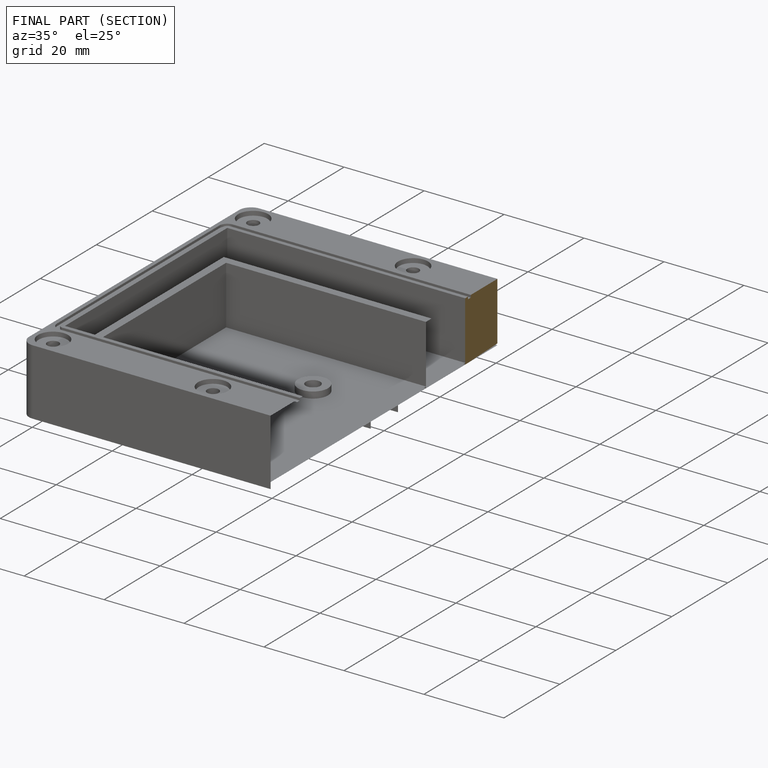
[diagram: finished part — half-section view (interior)]
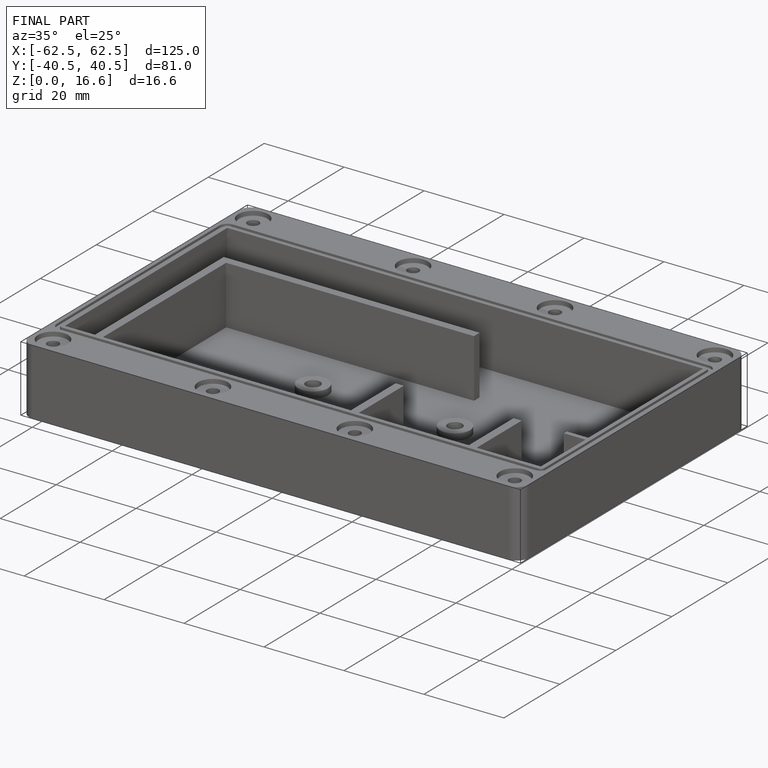
[diagram: finished part — iso view with bounding-box wireframe]
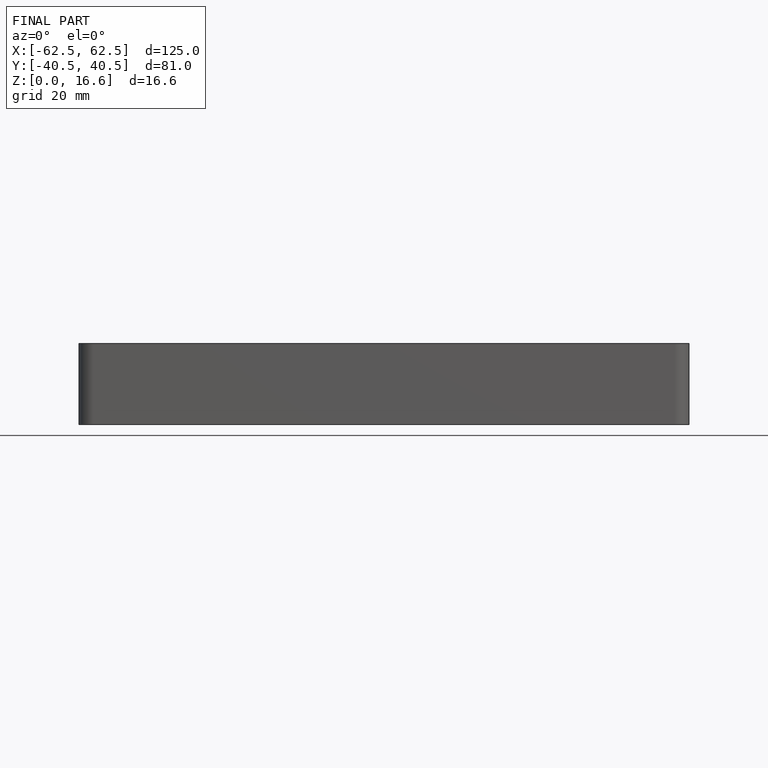
[diagram: finished part — front view with bounding-box wireframe]
